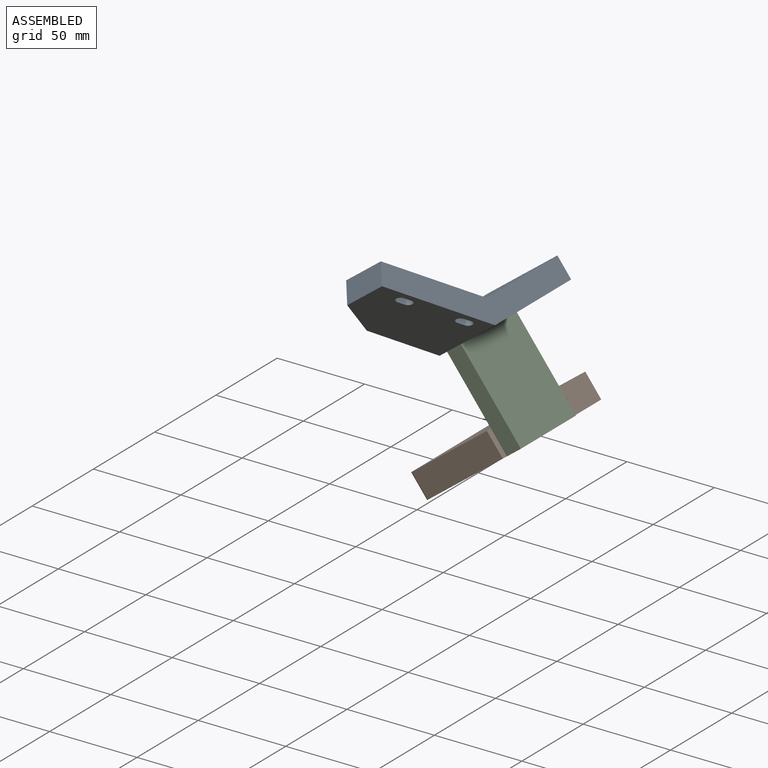
[diagram: assembled view]
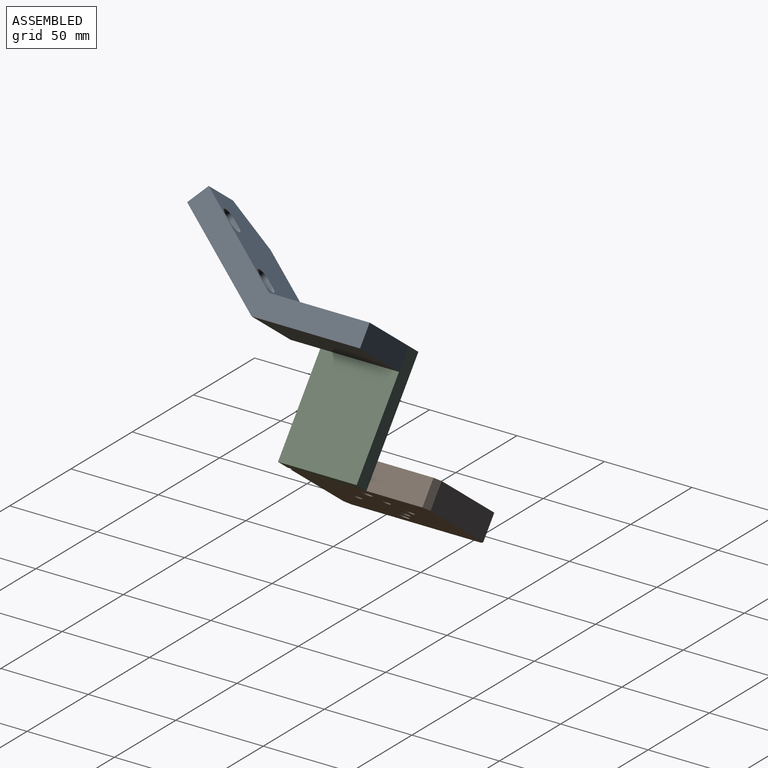
[diagram: assembled view, second angle]
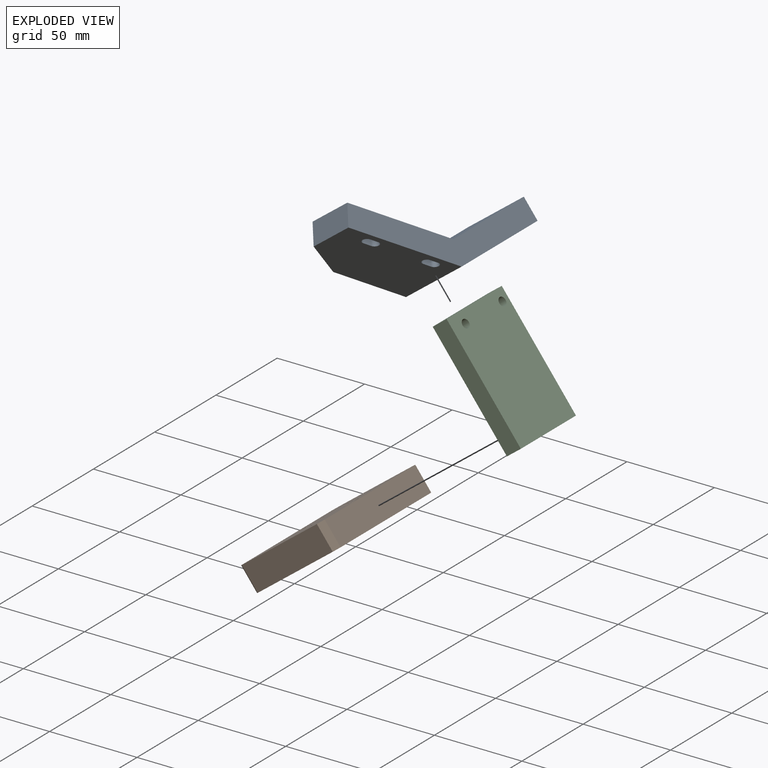
[diagram: exploded view]
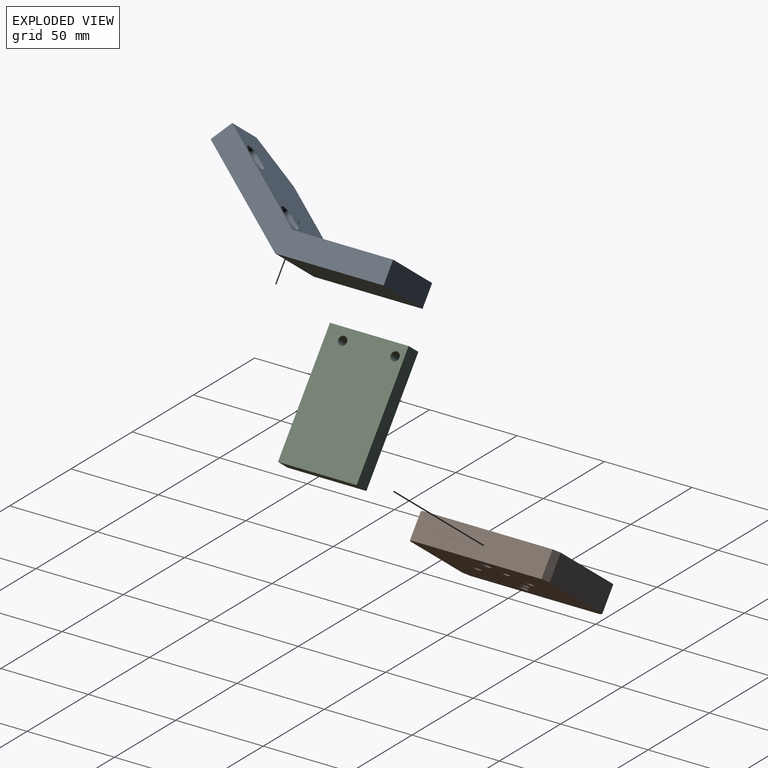
[diagram: exploded view, second angle]
ASSEMBLY  parts=3 mates=6
PART A: 31 faces, bbox 118.9x40x48.4 mm
  f0: plane 70x40mm, normal (0,0,-1), area 2523.2mm2, adj f6,f7,f8,f9,f18,f19,f20,f21
  f1: plane 14x9mm, normal (0,0,1), area 64mm2, adj f10,f11,f12,f13,f22,f23,f24,f25
  f2: plane 14x9mm, normal (0,0,1), area 64mm2, adj f14,f15,f16,f17,f18,f19,f20,f21
  f3: plane 40x10.24mm, normal (0.79,0,0.62), area 520mm2, adj f4,f7,f8,f9
  f4: plane 45.33x40mm, normal (-0.62,0,0.79), area 2300.9mm2, adj f3,f5,f8,f9
  f5: plane 65.52x40mm, normal (0,0,1), area 2216.2mm2, adj f4,f6,f8,f9,f10,f11,f12,f13
  f6: plane 25x13mm, normal (-1,0,0), area 325mm2, adj f0,f5,f8,f26
  f7: plane 48.86x40mm, normal (0.62,0,-0.79), area 2480mm2, adj f0,f3,f8,f9
  f8: plane 118.86x48.42mm, normal (0,-1,0), area 1657.8mm2, adj f0,f3,f4,f5,f6,f7
  f9: plane 93.86x48.42mm, normal (0,1,0), area 1293.5mm2, adj f0,f3,f4,f5,f7,f26,f27,f29
  f10: plane 5x5mm, normal (0,1,0), area 25mm2, adj f1,f5,f11,f13
  f11: cylinder r=4.5mm len=9mm, axis (0,0,1), area 70.7mm2, adj f1,f5,f10,f12
  f12: plane 5x5mm, normal (0,-1,0), area 25mm2, adj f1,f5,f11,f13
  f13: cylinder r=4.5mm len=9mm, axis (0,0,1), area 70.7mm2, adj f1,f5,f10,f12
  f14: plane 5x5mm, normal (0,-1,0), area 25mm2, adj f2,f5,f15,f17
  f15: cylinder r=4.5mm len=9mm, axis (0,0,1), area 70.7mm2, adj f2,f5,f14,f16
  f16: plane 5x5mm, normal (0,1,0), area 25mm2, adj f2,f5,f15,f17
  f17: cylinder r=4.5mm len=9mm, axis (0,0,1), area 70.7mm2, adj f2,f5,f14,f16
  f18: plane 8x5mm, normal (0,1,0), area 40mm2, adj f0,f2,f19,f21
  f19: cylinder r=2.5mm len=8mm, axis (0,0,1), area 62.8mm2, adj f0,f2,f18,f20
  f20: plane 8x5mm, normal (0,-1,0), area 40mm2, adj f0,f2,f19,f21
  f21: cylinder r=2.5mm len=8mm, axis (0,0,1), area 62.8mm2, adj f0,f2,f18,f20
  f22: plane 8x5mm, normal (0,-1,0), area 40mm2, adj f0,f1,f23,f25
  f23: cylinder r=2.5mm len=8mm, axis (0,0,1), area 62.8mm2, adj f0,f1,f22,f24
  f24: plane 8x5mm, normal (0,1,0), area 40mm2, adj f0,f1,f23,f25
  f25: cylinder r=2.5mm len=8mm, axis (0,0,1), area 62.8mm2, adj f0,f1,f22,f24
  f26: plane 25x15mm, normal (-0.51,0.86,0), area 379mm2, adj f0,f5,f6,f9
  f27: cylinder r=2.5mm len=15mm, axis (0,1,0), area 235.6mm2, adj f9,f28
  f28: plane 5x5mm, normal (0,1,0), area 19.6mm2, adj f27
  f29: cylinder r=2.5mm len=15mm, axis (0,1,0), area 235.6mm2, adj f9,f30
  f30: plane 5x5mm, normal (0,1,0), area 19.6mm2, adj f29
PART B: 16 faces, bbox 60x15x80 mm
  f0: plane 74x15mm, normal (-1,0,0), area 1110mm2, adj f10,f11,f13,f14
  f1: plane 54x15mm, normal (0,0,-1), area 810mm2, adj f10,f11,f12,f13
  f2: plane 74x15mm, normal (1,0,0), area 1110mm2, adj f10,f11,f12,f15
  f3: cylinder r=3mm len=15mm, axis (0,1,0), area 282.7mm2, adj f10,f11
  f4: cylinder r=3mm len=15mm, axis (0,1,0), area 282.7mm2, adj f10,f11
  f5: cylinder r=2.5mm len=15mm, axis (0,1,0), area 235.6mm2, adj f10,f11
  f6: cylinder r=2.5mm len=15mm, axis (0,1,0), area 235.6mm2, adj f10,f11
  f7: cylinder r=2.5mm len=15mm, axis (0,1,0), area 235.6mm2, adj f10,f11
  f8: cylinder r=2.5mm len=15mm, axis (0,1,0), area 235.6mm2, adj f10,f11
  f9: plane 54x15mm, normal (0,0,1), area 810mm2, adj f10,f11,f14,f15
  f10: plane 80x60mm, normal (0,-1,0), area 4646.9mm2, adj f0,f1,f2,f3,f4,f5,f6,f7
  f11: plane 80x60mm, normal (0,1,0), area 4646.9mm2, adj f0,f1,f2,f3,f4,f5,f6,f7
  f12: plane 15x3mm, normal (0.71,0,-0.71), area 63.6mm2, adj f1,f2,f10,f11
  f13: plane 15x3mm, normal (-0.71,0,-0.71), area 63.6mm2, adj f0,f1,f10,f11
  f14: plane 15x3mm, normal (-0.71,0,0.71), area 63.6mm2, adj f0,f9,f10,f11
  f15: plane 15x3mm, normal (0.71,0,0.71), area 63.6mm2, adj f2,f9,f10,f11
PART C: 8 faces, bbox 70x10x45 mm
  f0: plane 70x45mm, normal (0,-1,0), area 3110.7mm2, adj f2,f3,f4,f5,f6,f7
  f1: plane 70x45mm, normal (0,1,0), area 3110.7mm2, adj f2,f3,f4,f5,f6,f7
  f2: plane 45x10mm, normal (-1,0,0), area 450mm2, adj f0,f1,f3,f5
  f3: plane 70x10mm, normal (0,0,-1), area 700mm2, adj f0,f1,f2,f4
  f4: plane 45x10mm, normal (1,0,0), area 450mm2, adj f0,f1,f3,f5
  f5: plane 70x10mm, normal (0,0,1), area 700mm2, adj f0,f1,f2,f4
  f6: cylinder r=2.5mm len=10mm, axis (0,-1,0), area 157.1mm2, adj f0,f1
  f7: cylinder r=2.5mm len=10mm, axis (0,-1,0), area 157.1mm2, adj f0,f1
PLACE A rot(axis=(-0.61,0.01,0.79),90deg) t=(-85.89,-44.5,-14.36)mm
PLACE B rot(axis=(-0.9,-0.3,-0.3),95.9deg) t=(-68.04,11.5,-72.42)mm
PLACE C rot(axis=(0.33,-0.67,0.67),143.4deg) t=(-77.23,-7.76,-42.22)mm
MATE planar C.f4 <-> A.f4  axis (-0.61,0,0.8) through (-97.74,-5,-7.05)mm
MATE planar C.f0 <-> A.f29  axis (0.8,0,0.61) through (-72.33,-5.04,-32.14)mm
MATE planar C.f3 <-> A.f3  axis (0,1,0) through (-76.53,17.5,-34.89)mm
MATE planar B.f2 <-> C.f1  axis (0.8,0,0.61) through (-63.83,12.5,-59.79)mm
MATE planar C.f2 <-> B.f11  axis (0.61,0,-0.8) through (-55.31,-5,-62.73)mm
MATE planar B.f1 <-> C.f5  axis (0,-1,0) through (-87.69,-27.5,-77.98)mm
